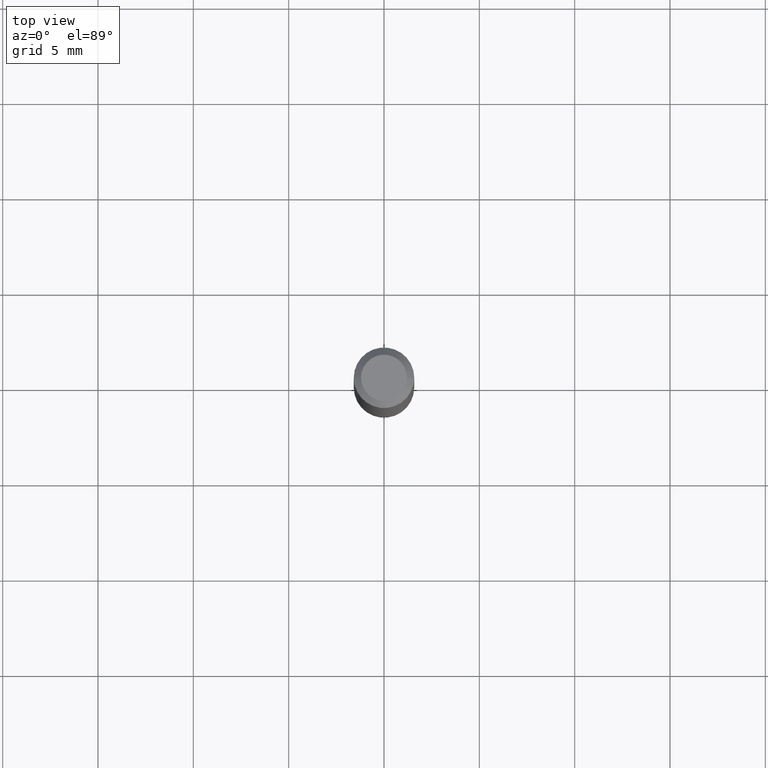
[diagram: clean part render]
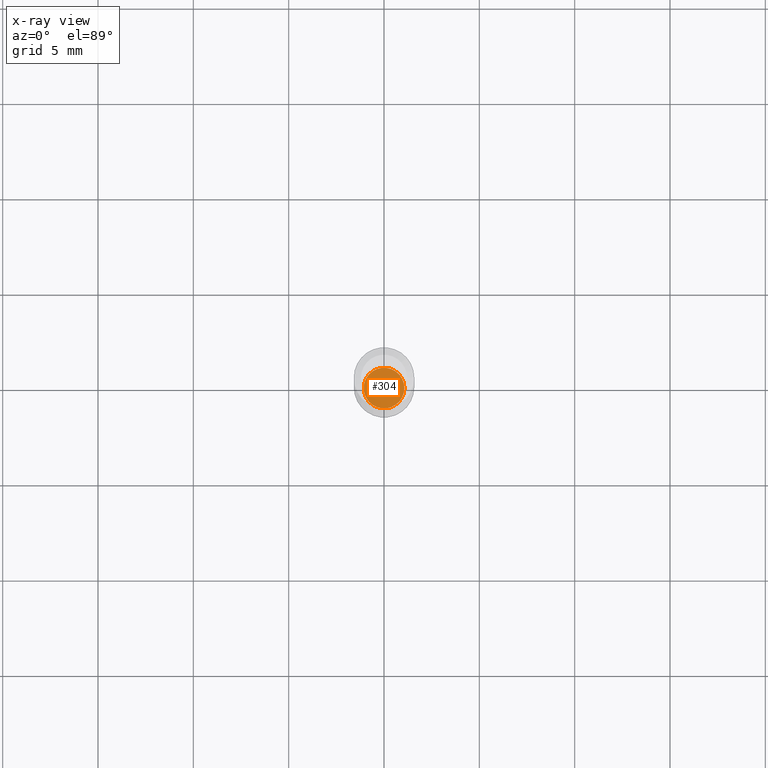
[diagram: x-ray — body ghosted, one internal face saturated and labeled with its STEP entity id]
A machine part, top view, then the same camera in x-ray: the body is ghosted and one INTERNAL B-rep face — a face not visible from any outside direction — is saturated and labeled: STEP entity #304.
In plain terms, the highlighted planar face has unit normal (-0, 0, 1).
Its self-contained STEP definition (entity closure, byte-faithful):
#12 = CIRCLE ( 'NONE', #44, 0.04199999999999999567 ) ;
#13 = ORIENTED_EDGE ( 'NONE', *, *, #419, .F. ) ;
#22 = VERTEX_POINT ( 'NONE', #58 ) ;
#43 = CARTESIAN_POINT ( 'NONE',  ( 0.04199999999999999567, -4.640178699322540290E-15, -1.245000000000000329 ) ) ;
#44 = AXIS2_PLACEMENT_3D ( 'NONE', #93, #374, #237 ) ;
#58 = CARTESIAN_POINT ( 'NONE',  ( -0.04199999999999999567, -4.045817090666364680E-15, -1.245000000000000329 ) ) ;
#93 = CARTESIAN_POINT ( 'NONE',  ( 3.044608663700495534E-29, -4.346894266859716647E-15, -1.245000000000000329 ) ) ;
#120 = DIRECTION ( 'NONE',  ( 1.000000000000000000, -6.982962677686275388E-15, 0.000000000000000000 ) ) ;
#125 = DIRECTION ( 'NONE',  ( -2.445468806185136597E-29, 3.491481338843145583E-15, 1.000000000000000000 ) ) ;
#155 = DIRECTION ( 'NONE',  ( 1.000000000000000000, -6.982962677686265922E-15, 4.876176775795935793E-29 ) ) ;
#159 = AXIS2_PLACEMENT_3D ( 'NONE', #268, #125, #120 ) ;
#169 = VERTEX_POINT ( 'NONE', #43 ) ;
#192 = FACE_OUTER_BOUND ( 'NONE', #283, .T. ) ;
#195 = CARTESIAN_POINT ( 'NONE',  ( 3.044608663700495534E-29, -4.346894266859716647E-15, -1.245000000000000329 ) ) ;
#237 = DIRECTION ( 'NONE',  ( 1.000000000000000000, -6.982962677686275388E-15, 0.000000000000000000 ) ) ;
#258 = EDGE_CURVE ( 'NONE', #22, #169, #276, .T. ) ;
#268 = CARTESIAN_POINT ( 'NONE',  ( 3.044608663700495534E-29, -4.346894266859716647E-15, -1.245000000000000329 ) ) ;
#275 = ORIENTED_EDGE ( 'NONE', *, *, #258, .F. ) ;
#276 = CIRCLE ( 'NONE', #159, 0.04199999999999999567 ) ;
#283 = EDGE_LOOP ( 'NONE', ( #13, #275 ) ) ;
#303 = DIRECTION ( 'NONE',  ( -2.438088387897960049E-29, 3.491481338843145188E-15, 1.000000000000000000 ) ) ;
#304 = ADVANCED_FACE ( 'NONE', ( #192 ), #442, .F. ) ;
#364 = AXIS2_PLACEMENT_3D ( 'NONE', #195, #303, #155 ) ;
#374 = DIRECTION ( 'NONE',  ( -2.445468806185136597E-29, 3.491481338843145583E-15, 1.000000000000000000 ) ) ;
#419 = EDGE_CURVE ( 'NONE', #169, #22, #12, .T. ) ;
#442 = PLANE ( 'NONE',  #364 ) ;